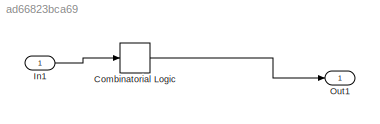
MODEL slx_ad66823bca69
KIND model
CONFIG AbsTol = auto
CONFIG EnableMultiTasking = off
CONFIG FixedStep = auto
CONFIG MaxStep = auto
CONFIG MinStep = auto
CONFIG RelTol = 1e-3
CONFIG SampleTimeConstraint = Unconstrained
CONFIG SolverName = VariableStepAuto
CONFIG StartTime = 0.0
CONFIG StopTime = 10.0
BLOCK [CombinatorialLogic] Combinatorial Logic
BLOCK [Inport] In1
BLOCK [Outport] Out1
LINE Combinatorial Logic:1 -> Out1:1
LINE In1:1 -> Combinatorial Logic:1
